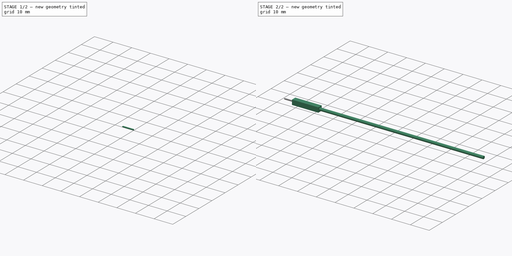
[diagram: build sequence overview — one tinted view per stage of 2, left to right]
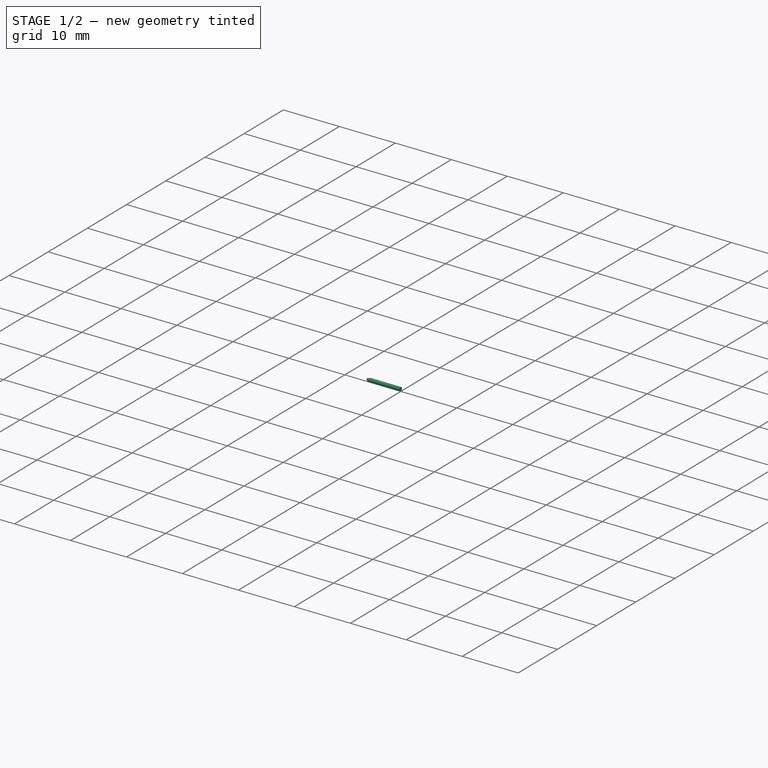
[diagram: stage 1 of 2 — iso view after this stage's code; geometry added in this stage tinted green]
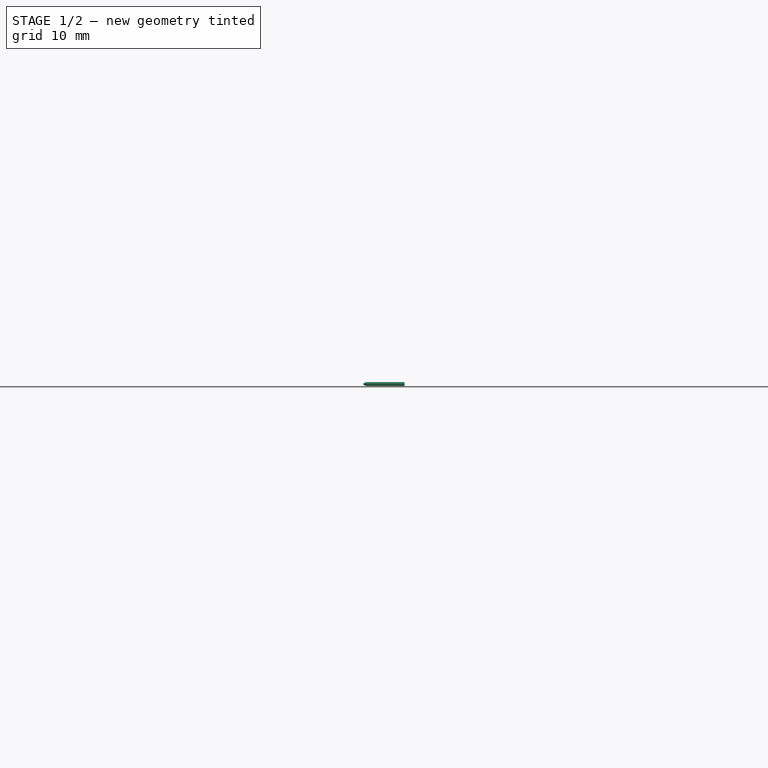
[diagram: stage 1 of 2 — front view after this stage's code; geometry added in this stage tinted green]
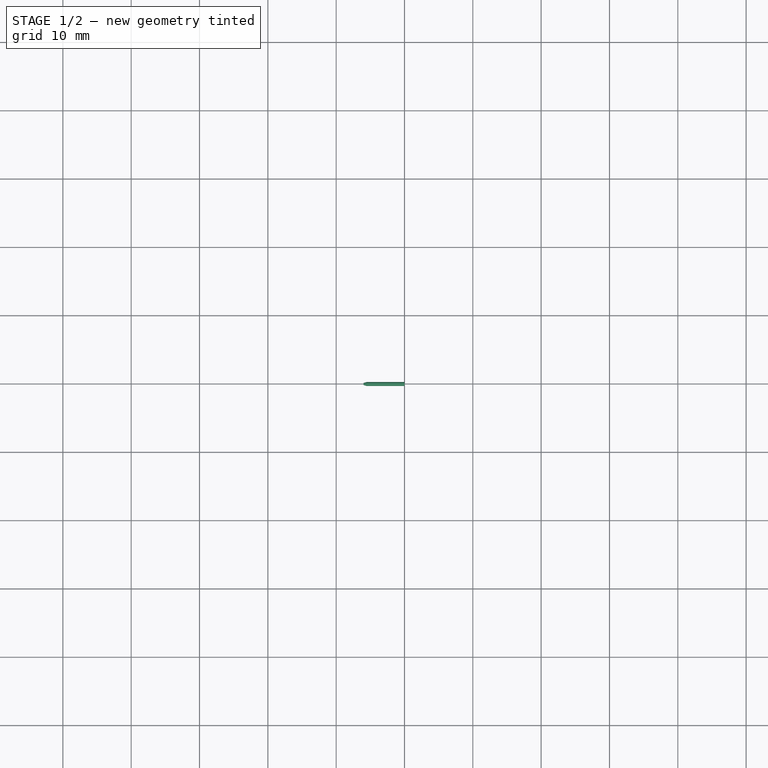
[diagram: stage 1 of 2 — top view after this stage's code; geometry added in this stage tinted green]
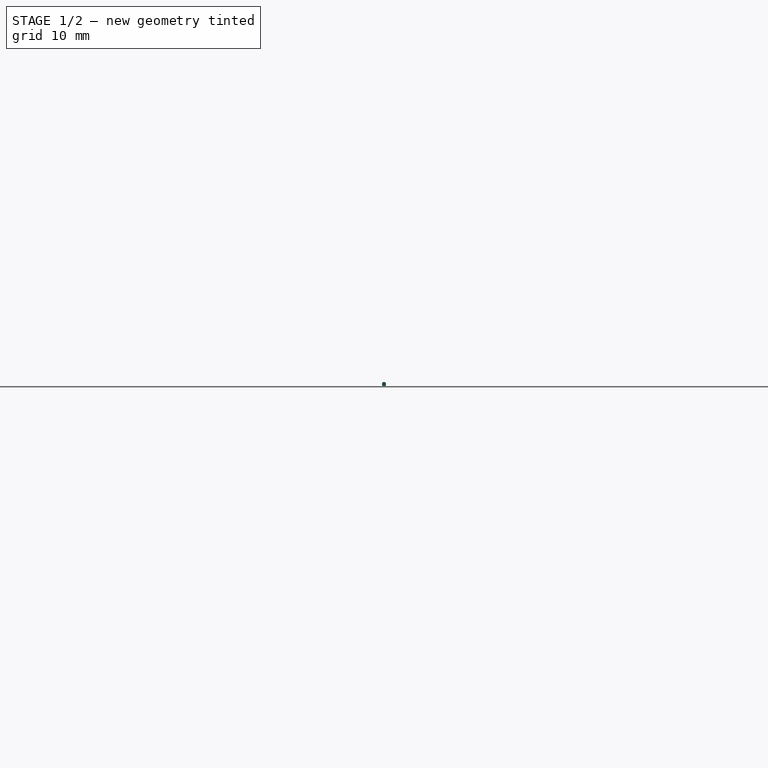
[diagram: stage 1 of 2 — right view after this stage's code; geometry added in this stage tinted green]
FCSTD DOCUMENT  (FreeCAD 0.20R29410 (Git))
Label: dupont-cable
Comment: FreeCAD-models by mgesteiro -- https://github.com/mgesteiro/FreeCAD-models
License: Creative Commons Attribution-ShareAlike
LicenseURL: http://creativecommons.org/licenses/by-sa/4.0/
objects: Sketcher::SketchObject×4, PartDesign::Pad×3, PartDesign::Body×3, Part::Feature×3, PartDesign::AdditiveLoft×1, App::Part×1
note: 18 computed .brp shape members not serialized (recipe doc carries the construction recipe); baked Part::Feature solids carry a one-line shape summary decoded from their .brp

FEATURE [PartDesign::Body] Body001  label="Body-header"
  Group = -> [Sketch001,Pad001]
  Origin = -> Origin001
  Tip = -> Pad001
FEATURE [Part::Feature] Part001
  Placement = pos=(0,1.2,0) rot=(0,0,1;0rad)
  shape: bbox 101 x 2.4 x 2.4 mm, 9 faces, 2 solids (baked)
FEATURE [Part::Feature] Part002
  Placement = pos=(0,-1.2,0) rot=(0,0,1;0rad)
  shape: bbox 101 x 2.4 x 2.4 mm, 9 faces, 2 solids (baked)
FEATURE [Sketcher::SketchObject] Sketch002  label="Sketch-pin"
  AttachmentOffset = pos=(0,0,-5.5) rot=(0,0,1;0rad)
  FullyConstrained = true
  MapMode = 5
  Placement = pos=(-5.5,1.2e-15,-1.2e-15) rot=(0.57735,0.57735,0.57735;2.0944rad)
  Support = -> [YZ_Plane003]
  sketch-geometry (5):
    g0: LineSegment StartX=-0.25 StartY=-0.3 StartZ=0 EndX=-0.295082 EndY=-0.0540984 EndZ=0
    g1: ArcOfCircle CenterX=0 CenterY=0 CenterZ=0 NormalX=0 NormalY=0 NormalZ=1 AngleXU=0 Radius=0.3 StartAngle=6.10187 EndAngle=9.6061
    g2: LineSegment StartX=0.295082 StartY=-0.0540984 StartZ=0 EndX=0.25 EndY=-0.3 EndZ=0
    g3: LineSegment StartX=0.25 StartY=-0.3 StartZ=0 EndX=-0.25 EndY=-0.3 EndZ=0
    g4: GeomPoint X=0 Y=0.3 Z=0
  constraints (11):
    c: Tangent(g0,g1) = 1.5708
    c: Tangent(g1,g2) = 1.5708
    c: Coincident(g2,g3)
    c: Coincident(g3,g0)
    c: Diameter(g1) = 0.6
    c: Coincident(g1,g-1)
    c: Symmetric(g0,g2,g-2)
    c: PointOnObject(g4,g1)
    c: PointOnObject(g4,g-2)
    c: DistanceY(g2,g4) = 0.6
    c: DistanceX(g3,g3) = 0.5
FEATURE [PartDesign::Pad] Pad002  label="Pad-pin"
  Direction = (1,-2e-16,3e-16)
  Length = 5.5
  Length2 = 10
  Placement = pos=(0,0,0) rot=(0.57735,0.57735,0.57735;2.0944rad)
  Profile = -> Sketch002
  ReferenceAxis = -> Sketch002 [N_Axis]
  Type = 0
FEATURE [Sketcher::SketchObject] Sketch003  label="Sketch-pin-tip"
  AttachmentOffset = pos=(0,0,-6) rot=(0,0,1;0rad)
  FullyConstrained = true
  MapMode = 5
  Placement = pos=(-6,1.3e-15,-1.3e-15) rot=(0.57735,0.57735,0.57735;2.0944rad)
  Support = -> [YZ_Plane003]
  sketch-geometry (5):
    g0: LineSegment StartX=-0.125 StartY=-0.15 StartZ=0 EndX=-0.147541 EndY=-0.0270492 EndZ=0
    g1: ArcOfCircle CenterX=0 CenterY=0 CenterZ=0 NormalX=0 NormalY=0 NormalZ=1 AngleXU=0 Radius=0.15 StartAngle=6.10187 EndAngle=9.6061
    g2: LineSegment StartX=0.147541 StartY=-0.0270492 StartZ=0 EndX=0.125 EndY=-0.15 EndZ=0
    g3: LineSegment StartX=0.125 StartY=-0.15 StartZ=0 EndX=-0.125 EndY=-0.15 EndZ=0
    g4: GeomPoint X=0 Y=0.15 Z=0
  constraints (11):
    c: Tangent(g0,g1) = 1.5708
    c: Tangent(g1,g2) = 1.5708
    c: Coincident(g2,g3)
    c: Coincident(g3,g0)
    c: Diameter(g1) = 0.3
    c: Coincident(g1,g-1)
    c: Symmetric(g0,g2,g-2)
    c: PointOnObject(g4,g1)
    c: PointOnObject(g4,g-2)
    c: DistanceY(g2,g4) = 0.3
    c: DistanceX(g3,g3) = 0.25
FEATURE [PartDesign::AdditiveLoft] AdditiveLoft  label="AdditiveLoft-pin-tip"
  BaseFeature = -> Pad002
  Closed = true
  Placement = pos=(0,0,0) rot=(0.57735,0.57735,0.57735;2.0944rad)
  Profile = -> Sketch002
  Ruled = false
  Sections = -> [Sketch003]
FEATURE [PartDesign::Body] Body002  label="Body-pin"
  Group = -> [Sketch002,Pad002,Sketch003,AdditiveLoft]
  Origin = -> Origin003
  Placement = pos=(-1,0,0) rot=(0,0,1;0rad)
  Tip = -> AdditiveLoft
FEATURE [App::Part] Part
  Group = -> [Body,Body001,Body002]
  Origin = -> Origin002
FEATURE [Part::Feature] Part003
  Placement = pos=(0,0,-10) rot=(0,0,1;0rad)
  shape: bbox 107 x 2.54 x 2.54 mm, 19 faces, 3 solids (baked)
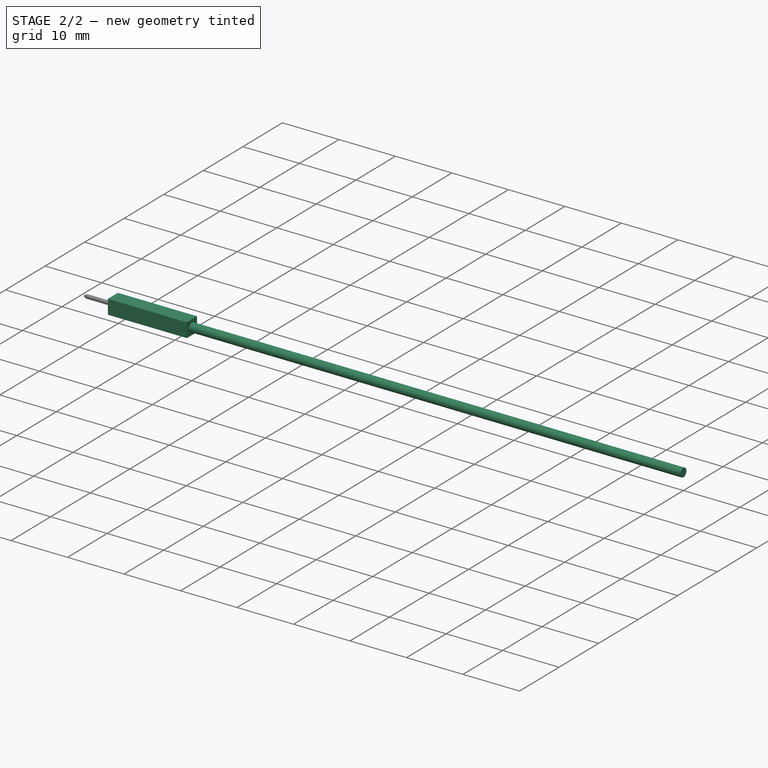
[diagram: stage 2 of 2 — iso view after this stage's code; geometry added in this stage tinted green]
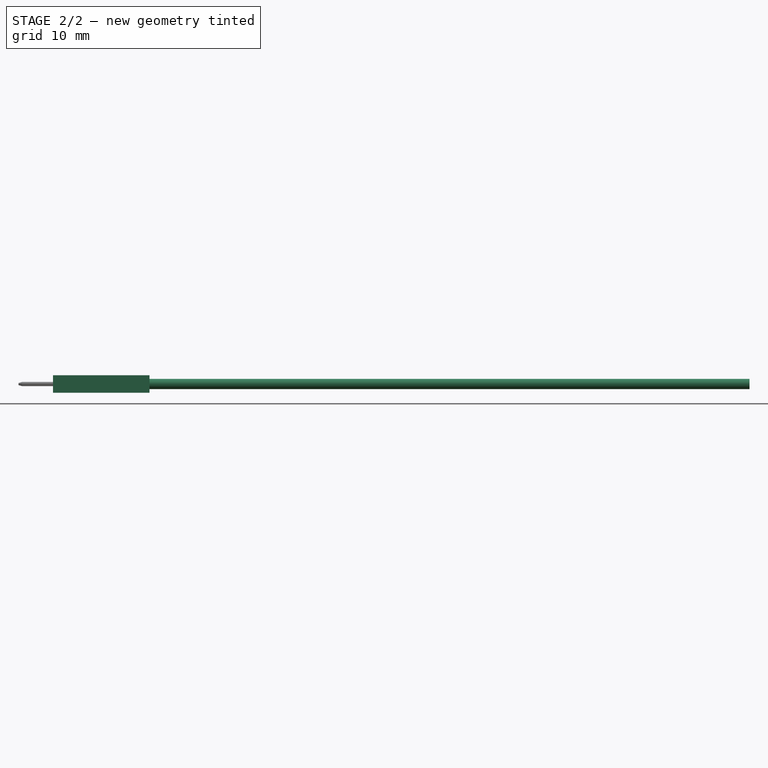
[diagram: stage 2 of 2 — front view after this stage's code; geometry added in this stage tinted green]
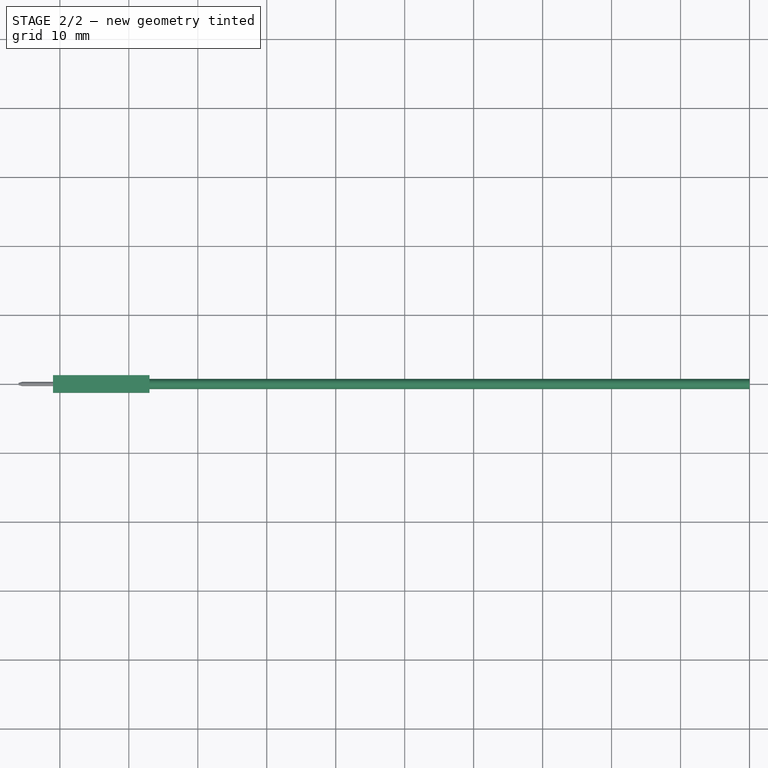
[diagram: stage 2 of 2 — top view after this stage's code; geometry added in this stage tinted green]
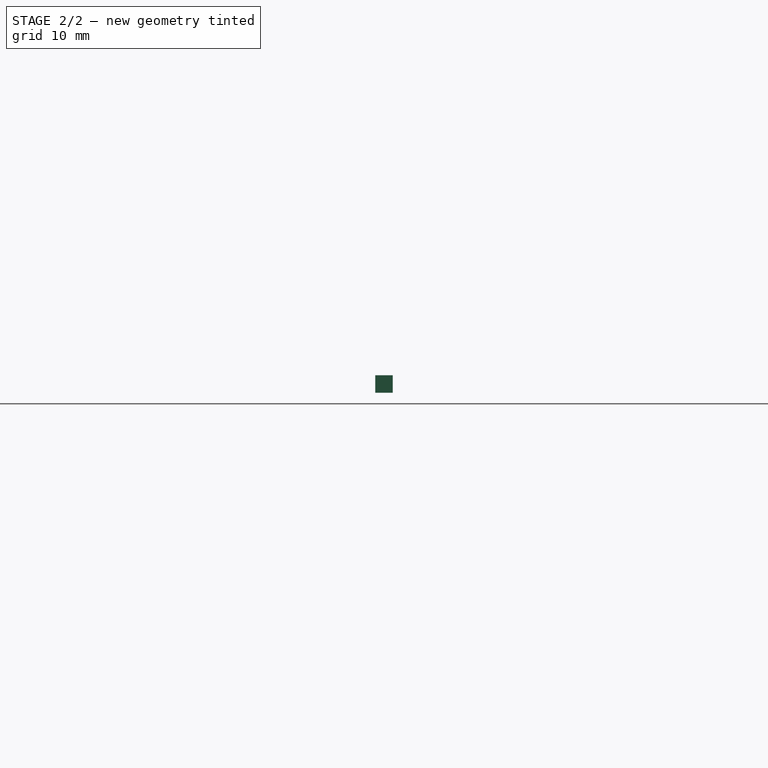
[diagram: stage 2 of 2 — right view after this stage's code; geometry added in this stage tinted green]
FEATURE [Sketcher::SketchObject] Sketch  label="Sketch-wire"
  FullyConstrained = true
  MapMode = 5
  Placement = pos=(0,0,0) rot=(0.57735,0.57735,0.57735;2.0944rad)
  Support = -> [YZ_Plane]
  sketch-geometry (1):
    g0: Circle CenterX=0 CenterY=0 CenterZ=0 NormalX=0 NormalY=0 NormalZ=1 AngleXU=0 Radius=0.75
  constraints (2):
    c: Coincident(g0,g-1)
    c: Diameter(g0) = 1.5
FEATURE [PartDesign::Pad] Pad  label="Pad-wire"
  Direction = (1,1,1)
  Length = 100
  Length2 = 100
  Placement = pos=(0,0,0) rot=(0.57735,0.57735,0.57735;2.0944rad)
  Profile = -> Sketch
  Type = 0
FEATURE [PartDesign::Body] Body  label="Body-wire"
  Group = -> [Sketch,Pad]
  Origin = -> Origin
  Tip = -> Pad
FEATURE [Sketcher::SketchObject] Sketch001  label="Sketch-header"
  AttachmentOffset = pos=(0,0,-1) rot=(0,0,1;0rad)
  FullyConstrained = true
  MapMode = 5
  Placement = pos=(-1,2e-16,-2e-16) rot=(0.57735,0.57735,0.57735;2.0944rad)
  Support = -> [YZ_Plane001]
  sketch-geometry (4):
    g0: LineSegment StartX=-1.27 StartY=1.27 StartZ=0 EndX=1.27 EndY=1.27 EndZ=0
    g1: LineSegment StartX=1.27 StartY=1.27 StartZ=0 EndX=1.27 EndY=-1.27 EndZ=0
    g2: LineSegment StartX=1.27 StartY=-1.27 StartZ=0 EndX=-1.27 EndY=-1.27 EndZ=0
    g3: LineSegment StartX=-1.27 StartY=-1.27 StartZ=0 EndX=-1.27 EndY=1.27 EndZ=0
  constraints (11):
    c: Coincident(g0,g1)
    c: Coincident(g1,g2)
    c: Coincident(g2,g3)
    c: Coincident(g3,g0)
    c: Horizontal(g0)
    c: Horizontal(g2)
    c: Vertical(g1)
    c: Vertical(g3)
    c: Symmetric(g1,g0,g-1)
    c: Equal(g0,g3)
    c: DistanceX(g0,g0) = 2.54
FEATURE [PartDesign::Pad] Pad001  label="Pad-header"
  Direction = (1,-2e-16,3e-16)
  Length = 14
  Length2 = 100
  Placement = pos=(0,0,0) rot=(0.57735,0.57735,0.57735;2.0944rad)
  Profile = -> Sketch001
  Type = 0
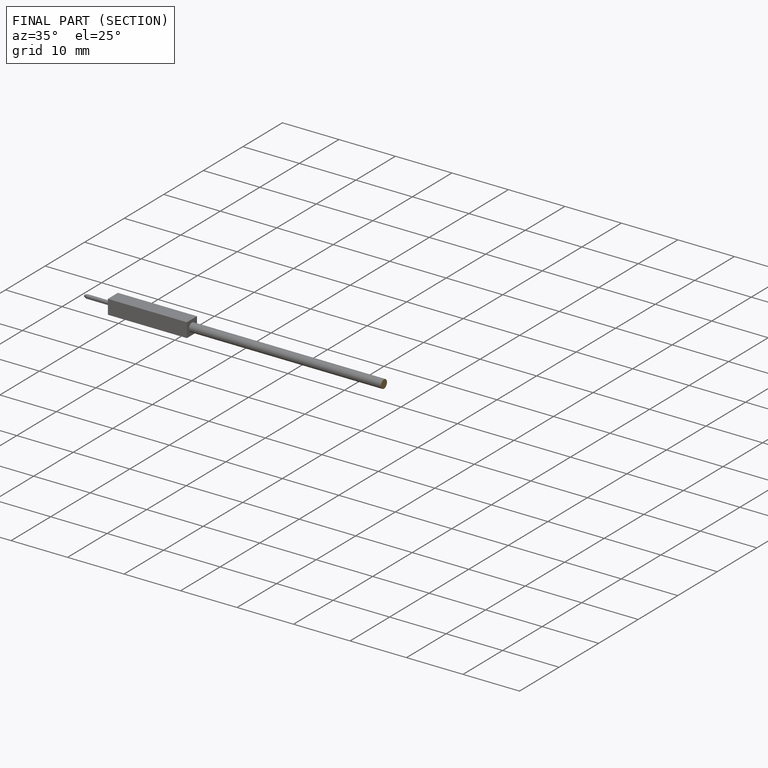
[diagram: finished part — half-section view (interior)]
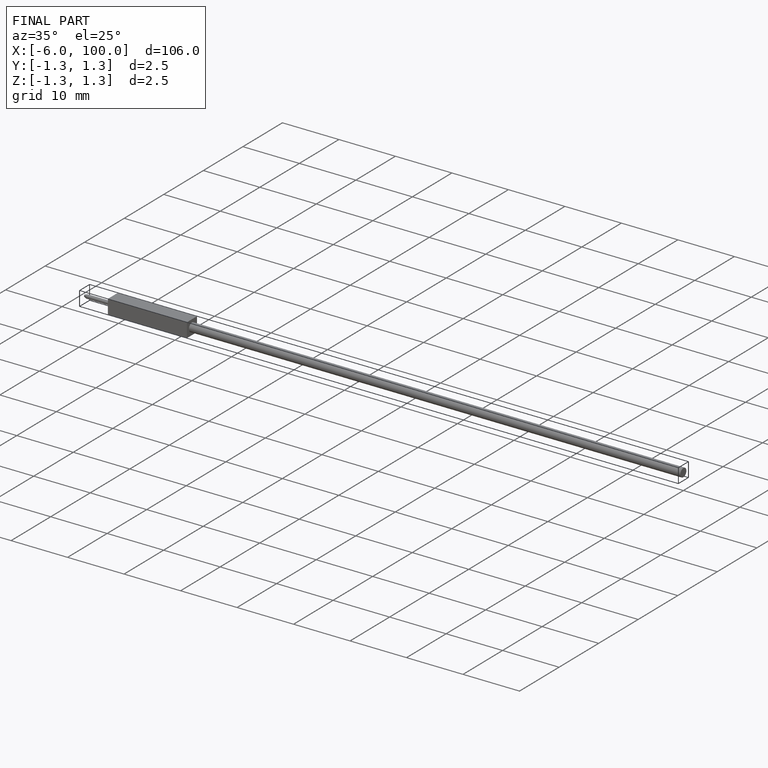
[diagram: finished part — iso view with bounding-box wireframe]
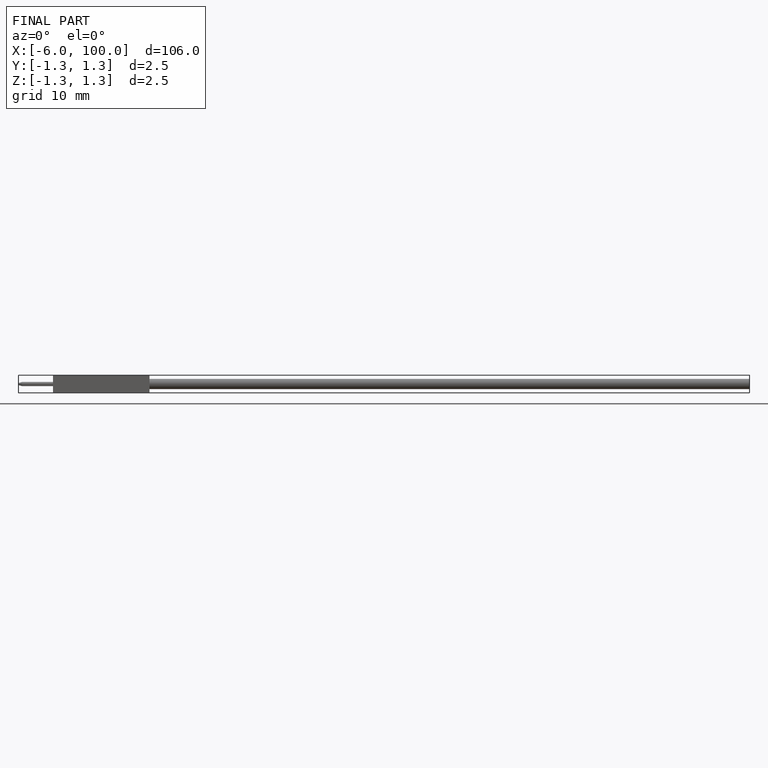
[diagram: finished part — front view with bounding-box wireframe]
